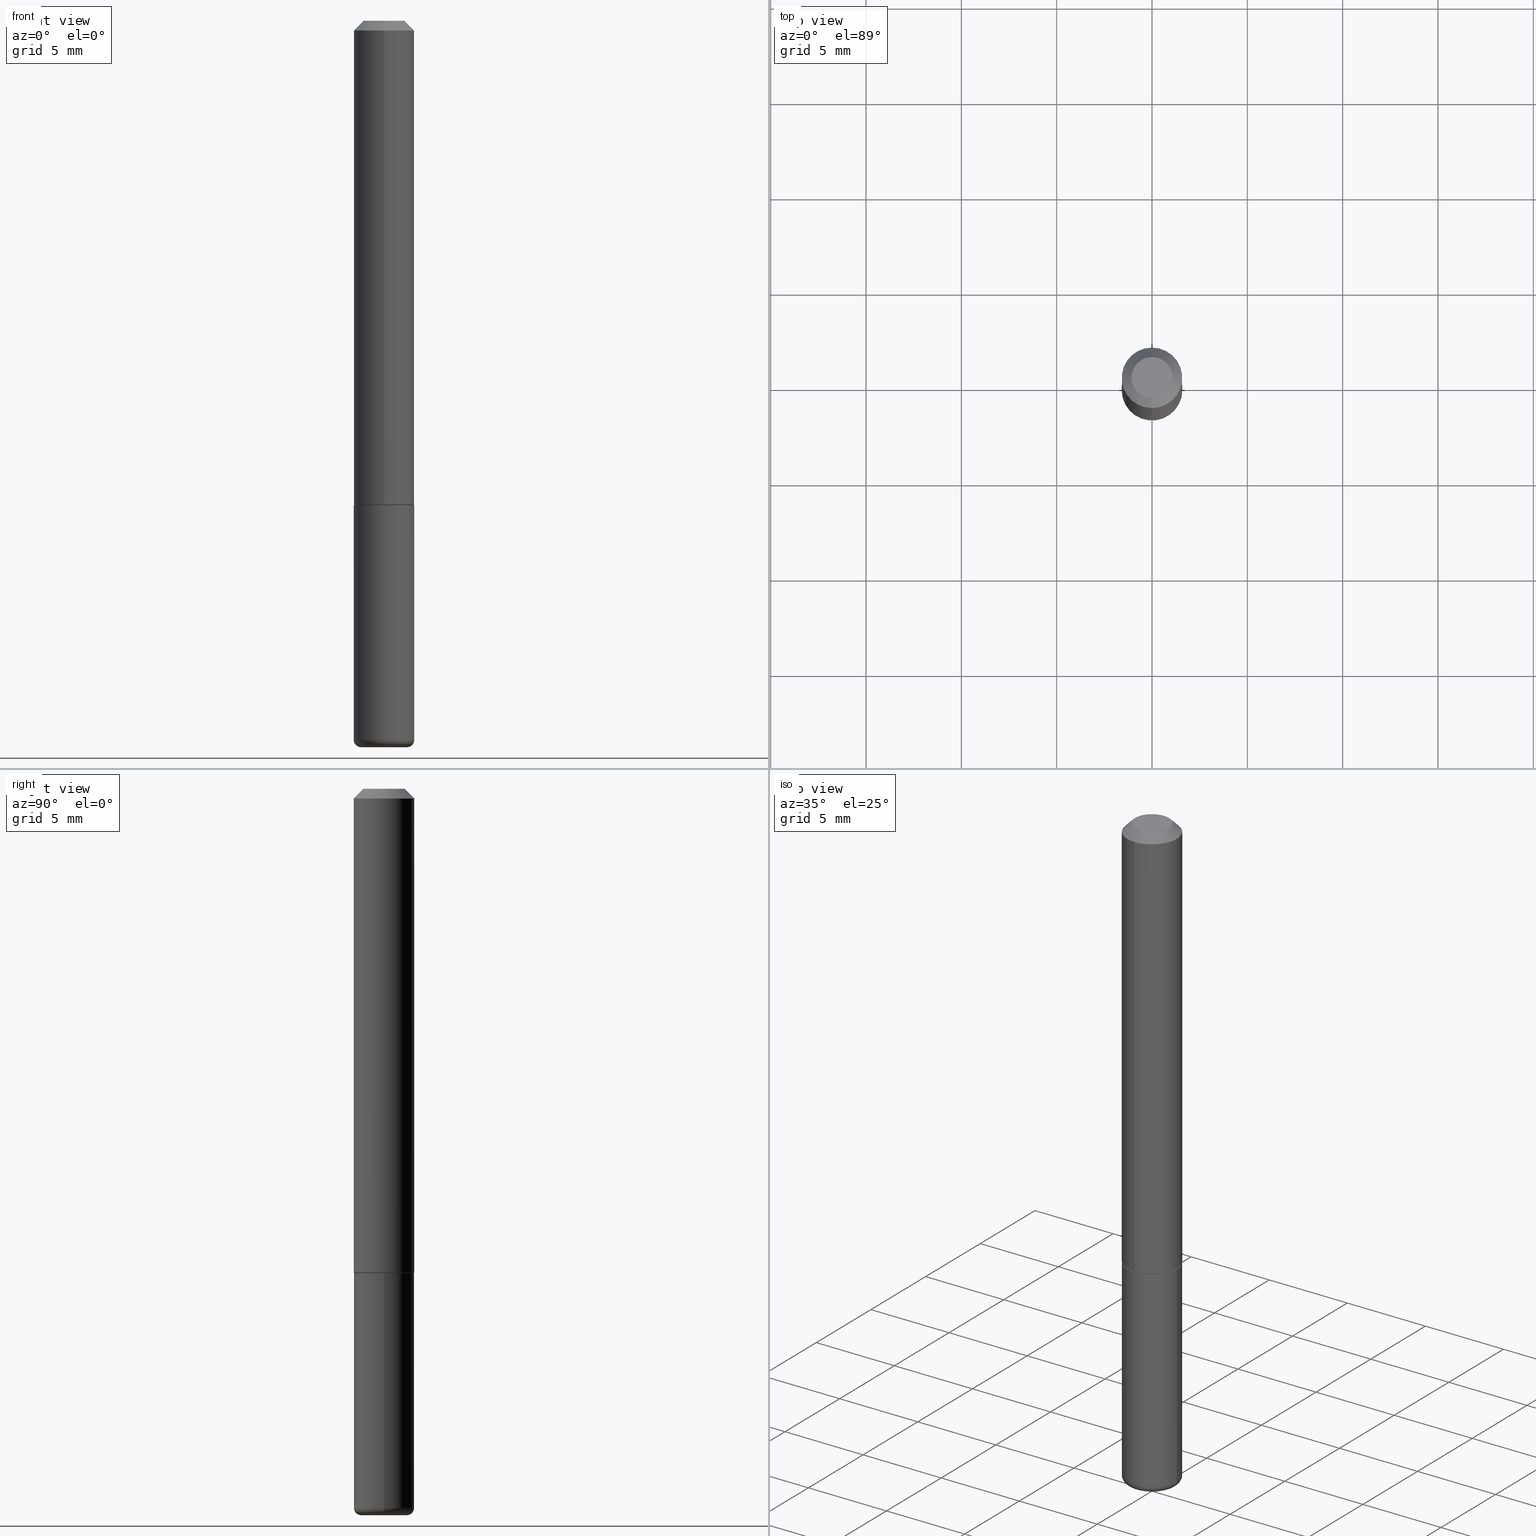
[diagram: canonical four-view strip — front | top / right | iso, engineering-drawing reading convention]
A machine part, canonical four-view strip (front | top / right | iso — engineering-drawing reading convention). The complete STEP part file that produces these views, byte-faithful:
ISO-10303-21;
HEADER;
FILE_DESCRIPTION (( 'STEP AP203' ),
    '1' );
FILE_NAME ('38201.STEP',
    '2024-03-02T18:07:33',
    ( '' ),
    ( '' ),
    'SwSTEP 2.0',
    'SolidWorks 2023',
    '' );
FILE_SCHEMA (( 'CONFIG_CONTROL_DESIGN' ));
ENDSEC;

DATA;
#1 = CARTESIAN_POINT ( 'NONE',  ( 2.420431046656757310E-29, -3.520343303691815911E-15, -0.9989999999999998881 ) ) ;
#2 = CARTESIAN_POINT ( 'NONE',  ( 3.666055405785281740E-16, 0.04249999999999975325, 4.369510515368569678E-17 ) ) ;
#3 = CIRCLE ( 'NONE', #72, 0.06250000000000001388 ) ;
#4 = PERSON_AND_ORGANIZATION_ROLE ( 'design_owner' ) ;
#5 = ORGANIZATION ( 'UNSPECIFIED', 'UNSPECIFIED', '' ) ;
#6 = ADVANCED_FACE ( 'NONE', ( #202 ), #266, .T. ) ;
#7 = MECHANICAL_CONTEXT ( 'NONE', #204, 'mechanical' ) ;
#8 = DIRECTION ( 'NONE',  ( -1.000000000000000000, 7.105427357601001859E-15, 0.000000000000000000 ) ) ;
#9 = PERSON_AND_ORGANIZATION ( #303, #5 ) ;
#10 = ORIENTED_EDGE ( 'NONE', *, *, #349, .T. ) ;
#11 = CIRCLE ( 'NONE', #196, 0.01499999999999997689 ) ;
#12 =( GEOMETRIC_REPRESENTATION_CONTEXT ( 3 ) GLOBAL_UNCERTAINTY_ASSIGNED_CONTEXT ( ( #391 ) ) GLOBAL_UNIT_ASSIGNED_CONTEXT ( ( #286, #411, #93 ) ) REPRESENTATION_CONTEXT ( 'NONE', 'WORKASPACE' ) );
#13 = CARTESIAN_POINT ( 'NONE',  ( -4.294522046776814963E-16, -0.06150000000000357264, -0.9999999999999994449 ) ) ;
#14 = EDGE_CURVE ( 'NONE', #310, #359, #11, .T. ) ;
#15 = CARTESIAN_POINT ( 'NONE',  ( 2.422853900557314300E-29, -3.523867170862677700E-15, -0.9999999999999996669 ) ) ;
#16 = CARTESIAN_POINT ( 'NONE',  ( 2.420431046656757310E-29, -3.520343303691815911E-15, -0.9989999999999998881 ) ) ;
#17 = DIRECTION ( 'NONE',  ( -6.982962677686266711E-15, -1.000000000000000000, 3.491481338843145583E-15 ) ) ;
#18 = CC_DESIGN_PERSON_AND_ORGANIZATION_ASSIGNMENT ( #66, #387, ( #167 ) ) ;
#19 = DIRECTION ( 'NONE',  ( -2.422853900557315141E-29, 3.523867170862678489E-15, 1.000000000000000000 ) ) ;
#20 = ORIENTED_EDGE ( 'NONE', *, *, #281, .T. ) ;
#21 = DIRECTION ( 'NONE',  ( -2.445468806185136597E-29, 3.491481338843145583E-15, 1.000000000000000000 ) ) ;
#22 = EDGE_CURVE ( 'NONE', #347, #85, #137, .T. ) ;
#23 = AXIS2_PLACEMENT_3D ( 'NONE', #400, #21, #339 ) ;
#24 = ORIENTED_EDGE ( 'NONE', *, *, #22, .F. ) ;
#25 = AXIS2_PLACEMENT_3D ( 'NONE', #242, #203, #369 ) ;
#26 = CARTESIAN_POINT ( 'NONE',  ( 4.440892098500754352E-16, 0.06249999999999659994, -0.9990000000000002212 ) ) ;
#27 = ORIENTED_EDGE ( 'NONE', *, *, #35, .F. ) ;
#28 = CARTESIAN_POINT ( 'NONE',  ( 3.668203209277704335E-29, -5.237222008264717388E-15, -1.499999999999999778 ) ) ;
#29 = EDGE_LOOP ( 'NONE', ( #312, #157 ) ) ;
#30 = DIRECTION ( 'NONE',  ( -6.982962677686266711E-15, -1.000000000000000000, 3.523867170862678884E-15 ) ) ;
#31 = CIRCLE ( 'NONE', #170, 0.04249999999999975325 ) ;
#32 = LOCAL_TIME ( 13, 7, 33.00000000000000000, #356 ) ;
#33 = FACE_OUTER_BOUND ( 'NONE', #374, .T. ) ;
#34 = DIRECTION ( 'NONE',  ( -4.937700262165222518E-15, -0.7071067811866417196, 0.7071067811864533148 ) ) ;
#35 = EDGE_CURVE ( 'NONE', #317, #370, #31, .T. ) ;
#36 = PERSON_AND_ORGANIZATION_ROLE ( 'design_supplier' ) ;
#37 = CIRCLE ( 'NONE', #335, 0.06250000000000012490 ) ;
#38 = SHAPE_DEFINITION_REPRESENTATION ( #214, #381 ) ;
#39 = APPROVAL_DATE_TIME ( #194, #208 ) ;
#40 = ORIENTED_EDGE ( 'NONE', *, *, #183, .T. ) ;
#41 = PERSON_AND_ORGANIZATION ( #303, #5 ) ;
#42 = ORIENTED_EDGE ( 'NONE', *, *, #324, .T. ) ;
#43 = EDGE_CURVE ( 'NONE', #370, #260, #393, .T. ) ;
#44 = APPROVAL_DATE_TIME ( #392, #55 ) ;
#45 = CARTESIAN_POINT ( 'NONE',  ( 4.440892098500628134E-16, 0.06250000000000002776, -2.202416981789175288E-16 ) ) ;
#46 = SECURITY_CLASSIFICATION ( '', '', #136 ) ;
#47 = ORIENTED_EDGE ( 'NONE', *, *, #379, .F. ) ;
#48 = DIRECTION ( 'NONE',  ( -2.422853900557314861E-29, 3.523867170862678489E-15, 1.000000000000000000 ) ) ;
#49 = CARTESIAN_POINT ( 'NONE',  ( 4.845707801114646817E-31, -7.047734341725380940E-17, -0.02000000000000006981 ) ) ;
#50 = CLOSED_SHELL ( 'NONE', ( #171, #69, #373, #117, #306, #88 ) ) ;
#51 = EDGE_CURVE ( 'NONE', #352, #85, #37, .T. ) ;
#52 = CARTESIAN_POINT ( 'NONE',  ( 0.06250000000000001388, -3.927916506198536858E-15, -0.9999999999999996669 ) ) ;
#53 = CARTESIAN_POINT ( 'NONE',  ( 3.668203209277704335E-29, -5.237222008264717388E-15, -1.499999999999999778 ) ) ;
#54 = ORIENTED_EDGE ( 'NONE', *, *, #397, .T. ) ;
#55 = APPROVAL ( #168, 'UNSPECIFIED' ) ;
#56 = CARTESIAN_POINT ( 'NONE',  ( -3.601761448830040600E-16, -0.04249999999999975325, 3.432238146770115888E-16 ) ) ;
#57 = AXIS2_PLACEMENT_3D ( 'NONE', #15, #48, #146 ) ;
#58 = ORIENTED_EDGE ( 'NONE', *, *, #183, .F. ) ;
#59 = AXIS2_PLACEMENT_3D ( 'NONE', #28, #161, #377 ) ;
#60 = DIRECTION ( 'NONE',  ( 1.000000000000000000, -6.982962677686261189E-15, 0.000000000000000000 ) ) ;
#61 = DIRECTION ( 'NONE',  ( 2.438088387897960049E-29, -3.491481338843145188E-15, -1.000000000000000000 ) ) ;
#62 = VERTEX_POINT ( 'NONE', #108 ) ;
#63 = EDGE_LOOP ( 'NONE', ( #27, #10, #406, #125 ) ) ;
#64 = CC_DESIGN_PERSON_AND_ORGANIZATION_ASSIGNMENT ( #395, #36, ( #267 ) ) ;
#65 = CIRCLE ( 'NONE', #401, 0.04249999999999975325 ) ;
#66 = PERSON_AND_ORGANIZATION ( #303, #5 ) ;
#67 = DESIGN_CONTEXT ( 'detailed design', #330, 'design' ) ;
#68 = PERSON_AND_ORGANIZATION_ROLE ( 'classification_officer' ) ;
#69 = ADVANCED_FACE ( 'NONE', ( #329 ), #300, .T. ) ;
#70 = AXIS2_PLACEMENT_3D ( 'NONE', #49, #342, #81 ) ;
#71 = CALENDAR_DATE ( 2024, 2, 3 ) ;
#72 = AXIS2_PLACEMENT_3D ( 'NONE', #241, #305, #309 ) ;
#73 = DIRECTION ( 'NONE',  ( 6.982962677686265922E-15, 1.000000000000000000, -3.551402391763545142E-15 ) ) ;
#74 = DATE_AND_TIME ( #71, #345 ) ;
#75 = DIRECTION ( 'NONE',  ( -2.422853900557315141E-29, 3.523867170862678489E-15, 1.000000000000000000 ) ) ;
#76 = VECTOR ( 'NONE', #304, 39.37007874015748143 ) ;
#77 = ORIENTED_EDGE ( 'NONE', *, *, #349, .F. ) ;
#78 = AXIS2_PLACEMENT_3D ( 'NONE', #199, #263, #229 ) ;
#79 = AXIS2_PLACEMENT_3D ( 'NONE', #253, #61, #384 ) ;
#80 = DIRECTION ( 'NONE',  ( -2.445468806185136597E-29, 3.491481338843145583E-15, 1.000000000000000000 ) ) ;
#81 = DIRECTION ( 'NONE',  ( -6.982962677686265922E-15, -1.000000000000000000, 3.551402391763545142E-15 ) ) ;
#82 = FACE_OUTER_BOUND ( 'NONE', #155, .T. ) ;
#83 = CIRCLE ( 'NONE', #231, 0.06150000000000004768 ) ;
#84 = CC_DESIGN_APPROVAL ( #208, ( #267 ) ) ;
#85 = VERTEX_POINT ( 'NONE', #104 ) ;
#86 = FACE_OUTER_BOUND ( 'NONE', #376, .T. ) ;
#87 = ORIENTED_EDGE ( 'NONE', *, *, #324, .F. ) ;
#88 = ADVANCED_FACE ( 'NONE', ( #230 ), #269, .T. ) ;
#89 = DIMENSIONAL_EXPONENTS ( 1.000000000000000000, 0.000000000000000000, 0.000000000000000000, 0.000000000000000000, 0.000000000000000000, 0.000000000000000000, 0.000000000000000000 ) ;
#90 = CARTESIAN_POINT ( 'NONE',  ( -0.06250000000000001388, -3.894076353662544935E-15, -0.9999999999999996669 ) ) ;
#91 = DIRECTION ( 'NONE',  ( -2.422853900557315141E-29, 3.523867170862678489E-15, 1.000000000000000000 ) ) ;
#92 = CC_DESIGN_SECURITY_CLASSIFICATION ( #46, ( #267 ) ) ;
#93 =( NAMED_UNIT ( * ) SI_UNIT ( $, .STERADIAN. ) SOLID_ANGLE_UNIT ( ) );
#94 = EDGE_CURVE ( 'NONE', #347, #396, #83, .T. ) ;
#95 = ORIENTED_EDGE ( 'NONE', *, *, #102, .T. ) ;
#96 = CARTESIAN_POINT ( 'NONE',  ( 2.445468806185136036E-29, -3.491481338843144399E-15, -0.9999999999999996669 ) ) ;
#97 = EDGE_CURVE ( 'NONE', #352, #260, #334, .T. ) ;
#98 = VERTEX_POINT ( 'NONE', #52 ) ;
#99 = CARTESIAN_POINT ( 'NONE',  ( 4.405364961712868626E-16, 0.06149999999999652273, -1.000000000000000000 ) ) ;
#100 = ADVANCED_FACE ( 'NONE', ( #403 ), #338, .F. ) ;
#101 = CARTESIAN_POINT ( 'NONE',  ( 3.631521177184927577E-29, -5.184849788182070703E-15, -1.484999999999999876 ) ) ;
#102 = EDGE_CURVE ( 'NONE', #260, #62, #294, .T. ) ;
#103 = APPROVAL_ROLE ( '' ) ;
#104 = CARTESIAN_POINT ( 'NONE',  ( -4.364351673553682501E-16, -0.06250000000000363598, -0.9989999999999996660 ) ) ;
#105 = AXIS2_PLACEMENT_3D ( 'NONE', #308, #17, #367 ) ;
#106 = COORDINATED_UNIVERSAL_TIME_OFFSET ( 5, 0, .BEHIND. ) ;
#107 = AXIS2_PLACEMENT_3D ( 'NONE', #372, #80, #178 ) ;
#108 = CARTESIAN_POINT ( 'NONE',  ( -4.287811248607198352E-16, -0.06250000000000001388, -0.01999999999999984776 ) ) ;
#109 = PERSON_AND_ORGANIZATION ( #303, #5 ) ;
#110 = ORIENTED_EDGE ( 'NONE', *, *, #379, .T. ) ;
#111 = CARTESIAN_POINT ( 'NONE',  ( -0.04750000000000004219, -4.847341988696023209E-15, -1.484999999999999876 ) ) ;
#112 = EDGE_CURVE ( 'NONE', #153, #310, #321, .T. ) ;
#113 = CYLINDRICAL_SURFACE ( 'NONE', #25, 0.06250000000000002776 ) ;
#114 = FACE_OUTER_BOUND ( 'NONE', #319, .T. ) ;
#115 = DIRECTION ( 'NONE',  ( -2.445468806185136597E-29, 3.491481338843145583E-15, 1.000000000000000000 ) ) ;
#116 = CYLINDRICAL_SURFACE ( 'NONE', #107, 0.06250000000000001388 ) ;
#117 = ADVANCED_FACE ( 'NONE', ( #82 ), #176, .T. ) ;
#118 = ORIENTED_EDGE ( 'NONE', *, *, #35, .T. ) ;
#119 = CARTESIAN_POINT ( 'NONE',  ( 2.967759138016645800E-16, 0.04249999999999975325, -5.303462480398862614E-17 ) ) ;
#120 = ORIENTED_EDGE ( 'NONE', *, *, #94, .T. ) ;
#121 = LINE ( 'NONE', #409, #301 ) ;
#122 = ORIENTED_EDGE ( 'NONE', *, *, #97, .T. ) ;
#123 = EDGE_CURVE ( 'NONE', #272, #359, #182, .T. ) ;
#124 = LINE ( 'NONE', #348, #314 ) ;
#125 = ORIENTED_EDGE ( 'NONE', *, *, #43, .F. ) ;
#126 = AXIS2_PLACEMENT_3D ( 'NONE', #119, #248, #375 ) ;
#127 = EDGE_CURVE ( 'NONE', #153, #272, #148, .T. ) ;
#128 = CARTESIAN_POINT ( 'NONE',  ( 0.000000000000000000, 0.000000000000000000, 0.000000000000000000 ) ) ;
#129 = DIRECTION ( 'NONE',  ( -6.982962677686265133E-15, -1.000000000000000000, 4.370956789862812472E-15 ) ) ;
#130 = CARTESIAN_POINT ( 'NONE',  ( 4.364351673553917187E-16, 0.06249999999999988204, -0.02000000000000029185 ) ) ;
#131 = DIRECTION ( 'NONE',  ( 1.000000000000000000, -6.982962677686261189E-15, 4.883557194083111219E-29 ) ) ;
#132 = DIRECTION ( 'NONE',  ( -2.445468806185136877E-29, 3.491481338843145188E-15, 1.000000000000000000 ) ) ;
#133 = AXIS2_PLACEMENT_3D ( 'NONE', #279, #408, #206 ) ;
#134 = APPROVAL_PERSON_ORGANIZATION ( #109, #208, #233 ) ;
#135 = APPROVAL_ROLE ( '' ) ;
#136 = SECURITY_CLASSIFICATION_LEVEL ( 'unclassified' ) ;
#137 = LINE ( 'NONE', #13, #394 ) ;
#138 = AXIS2_PLACEMENT_3D ( 'NONE', #53, #179, #273 ) ;
#139 = PERSON_AND_ORGANIZATION_ROLE ( 'creator' ) ;
#140 = AXIS2_PLACEMENT_3D ( 'NONE', #223, #353, #60 ) ;
#141 = EDGE_CURVE ( 'NONE', #62, #260, #365, .T. ) ;
#142 = EDGE_LOOP ( 'NONE', ( #120, #197, #244, #24 ) ) ;
#143 = PERSON_AND_ORGANIZATION ( #303, #5 ) ;
#144 = ORIENTED_EDGE ( 'NONE', *, *, #388, .T. ) ;
#145 = ADVANCED_FACE ( 'NONE', ( #205 ), #113, .T. ) ;
#146 = DIRECTION ( 'NONE',  ( -6.982962677686265922E-15, -1.000000000000000000, 3.523867170862678489E-15 ) ) ;
#147 = EDGE_CURVE ( 'NONE', #85, #62, #245, .T. ) ;
#148 = CIRCLE ( 'NONE', #105, 0.01499999999999997689 ) ;
#149 = CARTESIAN_POINT ( 'NONE',  ( 4.369837824924861120E-16, 0.06149999999999652273, -1.000000000000000000 ) ) ;
#150 = DIRECTION ( 'NONE',  ( -2.422853900557315141E-29, 3.523867170862678489E-15, 1.000000000000000000 ) ) ;
#151 = DIRECTION ( 'NONE',  ( 1.000000000000000000, -6.982962677686267499E-15, 4.876176775795935793E-29 ) ) ;
#152 = CARTESIAN_POINT ( 'NONE',  ( 4.845707801114646817E-31, -7.047734341725380940E-17, -0.02000000000000006981 ) ) ;
#153 = VERTEX_POINT ( 'NONE', #404 ) ;
#154 =( LENGTH_UNIT ( ) NAMED_UNIT ( * ) SI_UNIT ( $, .METRE. ) );
#155 = EDGE_LOOP ( 'NONE', ( #47, #54, #20, #287 ) ) ;
#156 = FACE_OUTER_BOUND ( 'NONE', #142, .T. ) ;
#157 = ORIENTED_EDGE ( 'NONE', *, *, #240, .F. ) ;
#158 = DIRECTION ( 'NONE',  ( -2.445468806185136877E-29, 3.491481338843145188E-15, 1.000000000000000000 ) ) ;
#159 = ORIENTED_EDGE ( 'NONE', *, *, #123, .F. ) ;
#160 = AXIS2_PLACEMENT_3D ( 'NONE', #128, #91, #30 ) ;
#161 = DIRECTION ( 'NONE',  ( -2.445468806185136597E-29, 3.491481338843145583E-15, 1.000000000000000000 ) ) ;
#162 = ORIENTED_EDGE ( 'NONE', *, *, #14, .F. ) ;
#163 = ADVANCED_FACE ( 'NONE', ( #239 ), #313, .T. ) ;
#164 = AXIS2_PLACEMENT_3D ( 'NONE', #416, #390, #73 ) ;
#165 = APPROVAL_PERSON_ORGANIZATION ( #326, #174, #103 ) ;
#166 = ORIENTED_EDGE ( 'NONE', *, *, #22, .T. ) ;
#167 = PRODUCT_DEFINITION ( 'UNKNOWN', '', #267, #67 ) ;
#168 = APPROVAL_STATUS ( 'not_yet_approved' ) ;
#169 = DIRECTION ( 'NONE',  ( 7.105427357601001859E-15, 1.000000000000000000, -3.491481338843145583E-15 ) ) ;
#170 = AXIS2_PLACEMENT_3D ( 'NONE', #236, #200, #172 ) ;
#171 = ADVANCED_FACE ( 'NONE', ( #340 ), #116, .T. ) ;
#172 = DIRECTION ( 'NONE',  ( -6.982962677686265922E-15, -1.000000000000000000, 3.523867170862678095E-15 ) ) ;
#173 = CARTESIAN_POINT ( 'NONE',  ( 2.422853900557314300E-29, -3.523867170862677700E-15, -0.9999999999999996669 ) ) ;
#174 = APPROVAL ( #389, 'UNSPECIFIED' ) ;
#175 = CARTESIAN_POINT ( 'NONE',  ( -4.364351673553918666E-16, -0.06250000000000002776, 2.202416981789175288E-16 ) ) ;
#176 = CYLINDRICAL_SURFACE ( 'NONE', #191, 0.06250000000000001388 ) ;
#177 = TOROIDAL_SURFACE ( 'NONE', #207, 0.04750000000000004219, 0.01499999999999997689 ) ;
#178 = DIRECTION ( 'NONE',  ( 1.000000000000000000, -6.982962677686267499E-15, 4.876176775795935793E-29 ) ) ;
#179 = DIRECTION ( 'NONE',  ( -2.445468806185136597E-29, 3.491481338843145583E-15, 1.000000000000000000 ) ) ;
#180 = ORIENTED_EDGE ( 'NONE', *, *, #147, .F. ) ;
#181 = DIRECTION ( 'NONE',  ( -2.422853900557315141E-29, 3.523867170862678489E-15, 1.000000000000000000 ) ) ;
#182 = CIRCLE ( 'NONE', #23, 0.06250000000000001388 ) ;
#183 = EDGE_CURVE ( 'NONE', #98, #218, #3, .T. ) ;
#184 = CONICAL_SURFACE ( 'NONE', #378, 0.06249999999999995143, 0.7853981633974467247 ) ;
#185 = ORIENTED_EDGE ( 'NONE', *, *, #43, .T. ) ;
#186 = DIRECTION ( 'NONE',  ( -6.982962677686265922E-15, -1.000000000000000000, 4.442029257990668187E-15 ) ) ;
#187 = EDGE_LOOP ( 'NONE', ( #323, #209, #166, #189 ) ) ;
#188 = CARTESIAN_POINT ( 'NONE',  ( 2.422853900557314300E-29, -3.523867170862677700E-15, -0.9999999999999996669 ) ) ;
#189 = ORIENTED_EDGE ( 'NONE', *, *, #51, .F. ) ;
#190 = DIRECTION ( 'NONE',  ( 1.000000000000000000, -6.982962677686261189E-15, 4.883557194083111219E-29 ) ) ;
#191 = AXIS2_PLACEMENT_3D ( 'NONE', #311, #115, #151 ) ;
#192 = ORIENTED_EDGE ( 'NONE', *, *, #397, .F. ) ;
#193 = LOCAL_TIME ( 13, 7, 33.00000000000000000, #398 ) ;
#194 = DATE_AND_TIME ( #357, #366 ) ;
#195 = DATE_TIME_ROLE ( 'classification_date' ) ;
#196 = AXIS2_PLACEMENT_3D ( 'NONE', #111, #169, #8 ) ;
#197 = ORIENTED_EDGE ( 'NONE', *, *, #227, .T. ) ;
#198 = EDGE_CURVE ( 'NONE', #85, #352, #354, .T. ) ;
#199 = CARTESIAN_POINT ( 'NONE',  ( 0.000000000000000000, 0.000000000000000000, 0.000000000000000000 ) ) ;
#200 = DIRECTION ( 'NONE',  ( -2.422853900557315141E-29, 3.523867170862678489E-15, 1.000000000000000000 ) ) ;
#201 = DIRECTION ( 'NONE',  ( -6.982962677686265922E-15, -1.000000000000000000, 4.442029257990668187E-15 ) ) ;
#202 = FACE_OUTER_BOUND ( 'NONE', #410, .T. ) ;
#203 = DIRECTION ( 'NONE',  ( -2.422853900557315141E-29, 3.523867170862678489E-15, 1.000000000000000000 ) ) ;
#204 = APPLICATION_CONTEXT ( 'configuration controlled 3d designs of mechanical parts and assemblies' ) ;
#205 = FACE_OUTER_BOUND ( 'NONE', #285, .T. ) ;
#206 = DIRECTION ( 'NONE',  ( -6.982962677686265922E-15, -1.000000000000000000, 4.442029257990668187E-15 ) ) ;
#207 = AXIS2_PLACEMENT_3D ( 'NONE', #101, #226, #190 ) ;
#208 = APPROVAL ( #298, 'UNSPECIFIED' ) ;
#209 = ORIENTED_EDGE ( 'NONE', *, *, #240, .T. ) ;
#210 = PLANE ( 'NONE',  #126 ) ;
#211 = EDGE_LOOP ( 'NONE', ( #162, #42, #343, #192 ) ) ;
#212 = LINE ( 'NONE', #149, #280 ) ;
#213 = ORIENTED_EDGE ( 'NONE', *, *, #112, .T. ) ;
#214 = PRODUCT_DEFINITION_SHAPE ( 'NONE', 'NONE',  #167 ) ;
#215 = ADVANCED_FACE ( 'NONE', ( #86 ), #210, .F. ) ;
#216 = DIRECTION ( 'NONE',  ( -2.445468806185136597E-29, 3.491481338843145583E-15, 1.000000000000000000 ) ) ;
#217 = CONICAL_SURFACE ( 'NONE', #232, 0.06150000000000004768, 0.7853981633975849475 ) ;
#218 = VERTEX_POINT ( 'NONE', #90 ) ;
#219 = CARTESIAN_POINT ( 'NONE',  ( 4.845707801114646817E-31, -7.047734341725380940E-17, -0.02000000000000006981 ) ) ;
#220 = ORIENTED_EDGE ( 'NONE', *, *, #198, .T. ) ;
#221 = DIRECTION ( 'NONE',  ( -4.851104656540955597E-15, -0.7071067811865487940, -0.7071067811865461294 ) ) ;
#222 = ORIENTED_EDGE ( 'NONE', *, *, #102, .F. ) ;
#223 = CARTESIAN_POINT ( 'NONE',  ( 3.631521177184928138E-29, -5.184849788182071492E-15, -1.485000000000000098 ) ) ;
#224 = AXIS2_PLACEMENT_3D ( 'NONE', #152, #150, #276 ) ;
#225 = PRODUCT_RELATED_PRODUCT_CATEGORY ( 'detail', '', ( #284 ) ) ;
#226 = DIRECTION ( 'NONE',  ( -2.445468806185136597E-29, 3.491481338843145583E-15, 1.000000000000000000 ) ) ;
#227 = EDGE_CURVE ( 'NONE', #396, #352, #212, .T. ) ;
#228 = COORDINATED_UNIVERSAL_TIME_OFFSET ( 5, 0, .BEHIND. ) ;
#229 = DIRECTION ( 'NONE',  ( 1.000000000000000000, 0.000000000000000000, 0.000000000000000000 ) ) ;
#230 = FACE_OUTER_BOUND ( 'NONE', #350, .T. ) ;
#231 = AXIS2_PLACEMENT_3D ( 'NONE', #363, #75, #201 ) ;
#232 = AXIS2_PLACEMENT_3D ( 'NONE', #188, #318, #186 ) ;
#233 = APPROVAL_ROLE ( '' ) ;
#234 = CARTESIAN_POINT ( 'NONE',  ( 3.668203209277704335E-29, -5.237222008264717388E-15, -1.499999999999999778 ) ) ;
#235 = DATE_AND_TIME ( #268, #371 ) ;
#236 = CARTESIAN_POINT ( 'NONE',  ( -4.687240070556140497E-45, 6.817254396885214509E-31, 1.934594599153486335E-16 ) ) ;
#237 = DIRECTION ( 'NONE',  ( -2.445468806185136597E-29, 3.491481338843145583E-15, 1.000000000000000000 ) ) ;
#238 = CIRCLE ( 'NONE', #261, 0.06150000000000004768 ) ;
#239 = FACE_OUTER_BOUND ( 'NONE', #187, .T. ) ;
#240 = EDGE_CURVE ( 'NONE', #396, #347, #238, .T. ) ;
#241 = CARTESIAN_POINT ( 'NONE',  ( 2.445468806185136036E-29, -3.491481338843144399E-15, -0.9999999999999996669 ) ) ;
#242 = CARTESIAN_POINT ( 'NONE',  ( 0.000000000000000000, 0.000000000000000000, 0.000000000000000000 ) ) ;
#243 = CC_DESIGN_PERSON_AND_ORGANIZATION_ASSIGNMENT ( #293, #4, ( #284 ) ) ;
#244 = ORIENTED_EDGE ( 'NONE', *, *, #198, .F. ) ;
#245 = LINE ( 'NONE', #175, #76 ) ;
#246 = CC_DESIGN_APPROVAL ( #174, ( #46 ) ) ;
#247 = ADVANCED_FACE ( 'NONE', ( #114 ), #368, .T. ) ;
#248 = DIRECTION ( 'NONE',  ( 2.422853900557314861E-29, -3.523867170862678489E-15, -1.000000000000000000 ) ) ;
#249 = ORIENTED_EDGE ( 'NONE', *, *, #112, .F. ) ;
#250 = MANIFOLD_SOLID_BREP ( 'Body-Move/Copy2[2]', #413 ) ;
#251 = LINE ( 'NONE', #415, #289 ) ;
#252 = ORIENTED_EDGE ( 'NONE', *, *, #262, .T. ) ;
#253 = CARTESIAN_POINT ( 'NONE',  ( 2.445468806185136036E-29, -3.491481338843144399E-15, -0.9999999999999996669 ) ) ;
#254 = VECTOR ( 'NONE', #302, 39.37007874015748143 ) ;
#255 = CIRCLE ( 'NONE', #360, 0.06250000000000001388 ) ;
#256 = ORIENTED_EDGE ( 'NONE', *, *, #127, .F. ) ;
#257 = DIRECTION ( 'NONE',  ( 6.982962677686265922E-15, 1.000000000000000000, -3.551402391763545142E-15 ) ) ;
#258 = CARTESIAN_POINT ( 'NONE',  ( 3.631521177184927577E-29, -5.184849788182070703E-15, -1.484999999999999876 ) ) ;
#259 = PLANE ( 'NONE',  #79 ) ;
#260 = VERTEX_POINT ( 'NONE', #130 ) ;
#261 = AXIS2_PLACEMENT_3D ( 'NONE', #173, #275, #402 ) ;
#262 = EDGE_CURVE ( 'NONE', #370, #317, #65, .T. ) ;
#263 = DIRECTION ( 'NONE',  ( 0.000000000000000000, 0.000000000000000000, 1.000000000000000000 ) ) ;
#264 = APPLICATION_PROTOCOL_DEFINITION ( 'international standard', 'config_control_design', 1994, #330 ) ;
#265 = EDGE_LOOP ( 'NONE', ( #213, #332, #159, #256 ) ) ;
#266 = CONICAL_SURFACE ( 'NONE', #164, 0.06249999999999995143, 0.7853981633974467247 ) ;
#267 = PRODUCT_DEFINITION_FORMATION_WITH_SPECIFIED_SOURCE ( 'ANY', '', #284, .NOT_KNOWN. ) ;
#268 = CALENDAR_DATE ( 2024, 2, 3 ) ;
#269 = PLANE ( 'NONE',  #274 ) ;
#270 = CC_DESIGN_DATE_AND_TIME_ASSIGNMENT ( #235, #195, ( #46 ) ) ;
#271 = COORDINATED_UNIVERSAL_TIME_OFFSET ( 5, 0, .BEHIND. ) ;
#272 = VERTEX_POINT ( 'NONE', #385 ) ;
#273 = DIRECTION ( 'NONE',  ( 1.000000000000000000, -6.982962677686276177E-15, 0.000000000000000000 ) ) ;
#274 = AXIS2_PLACEMENT_3D ( 'NONE', #234, #361, #364 ) ;
#275 = DIRECTION ( 'NONE',  ( -2.422853900557315141E-29, 3.523867170862678489E-15, 1.000000000000000000 ) ) ;
#276 = DIRECTION ( 'NONE',  ( -6.982962677686265922E-15, -1.000000000000000000, 3.551402391763545142E-15 ) ) ;
#277 = DIRECTION ( 'NONE',  ( -6.982962677686265133E-15, -1.000000000000000000, 4.370956789862812472E-15 ) ) ;
#278 = EDGE_LOOP ( 'NONE', ( #383, #110, #58, #380 ) ) ;
#279 = CARTESIAN_POINT ( 'NONE',  ( 2.422853900557314300E-29, -3.523867170862677700E-15, -0.9999999999999996669 ) ) ;
#280 = VECTOR ( 'NONE', #344, 39.37007874015748143 ) ;
#281 = EDGE_CURVE ( 'NONE', #272, #98, #124, .T. ) ;
#282 = ORIENTED_EDGE ( 'NONE', *, *, #262, .F. ) ;
#283 = FACE_OUTER_BOUND ( 'NONE', #63, .T. ) ;
#284 = PRODUCT ( '38201', '38201', '', ( #7 ) ) ;
#285 = EDGE_LOOP ( 'NONE', ( #412, #290, #399, #222 ) ) ;
#286 =( CONVERSION_BASED_UNIT ( 'INCH', #316 ) LENGTH_UNIT ( ) NAMED_UNIT ( #89 ) );
#287 = ORIENTED_EDGE ( 'NONE', *, *, #388, .F. ) ;
#288 = FACE_OUTER_BOUND ( 'NONE', #211, .T. ) ;
#289 = VECTOR ( 'NONE', #132, 39.37007874015748143 ) ;
#290 = ORIENTED_EDGE ( 'NONE', *, *, #51, .T. ) ;
#291 = CARTESIAN_POINT ( 'NONE',  ( -0.04750000000000004219, -4.820237393555338596E-15, -1.499999999999999778 ) ) ;
#292 = DIRECTION ( 'NONE',  ( 4.937700262164540154E-15, 0.7071067811865440200, -0.7071067811865511255 ) ) ;
#293 = PERSON_AND_ORGANIZATION ( #303, #5 ) ;
#294 = CIRCLE ( 'NONE', #70, 0.06249999999999995143 ) ;
#295 = CC_DESIGN_APPROVAL ( #55, ( #167 ) ) ;
#296 = APPROVAL_DATE_TIME ( #333, #174 ) ;
#297 = ORIENTED_EDGE ( 'NONE', *, *, #141, .F. ) ;
#298 = APPROVAL_STATUS ( 'not_yet_approved' ) ;
#299 = CARTESIAN_POINT ( 'NONE',  ( 4.364351673553917187E-16, 0.06249999999999988204, -0.02000000000000029185 ) ) ;
#300 = TOROIDAL_SURFACE ( 'NONE', #407, 0.04750000000000004219, 0.01499999999999997689 ) ;
#301 = VECTOR ( 'NONE', #221, 39.37007874015748854 ) ;
#302 = DIRECTION ( 'NONE',  ( -2.422853900557315141E-29, 3.523867170862678489E-15, 1.000000000000000000 ) ) ;
#303 = PERSON ( 'UNSPECIFIED', 'UNSPECIFIED', 'UNSPECIFIED', ('UNSPECIFIED'), ('UNSPECIFIED'), ('UNSPECIFIED') ) ;
#304 = DIRECTION ( 'NONE',  ( -2.422853900557315141E-29, 3.523867170862678489E-15, 1.000000000000000000 ) ) ;
#305 = DIRECTION ( 'NONE',  ( -2.445468806185136597E-29, 3.491481338843145583E-15, 1.000000000000000000 ) ) ;
#306 = ADVANCED_FACE ( 'NONE', ( #288 ), #177, .T. ) ;
#307 = APPROVAL_PERSON_ORGANIZATION ( #41, #55, #135 ) ;
#308 = CARTESIAN_POINT ( 'NONE',  ( 0.04750000000000004219, -5.516540515372169003E-15, -1.484999999999999876 ) ) ;
#309 = DIRECTION ( 'NONE',  ( 1.000000000000000000, -6.982962677686269077E-15, 0.000000000000000000 ) ) ;
#310 = VERTEX_POINT ( 'NONE', #291 ) ;
#311 = CARTESIAN_POINT ( 'NONE',  ( 0.000000000000000000, 0.000000000000000000, 0.000000000000000000 ) ) ;
#312 = ORIENTED_EDGE ( 'NONE', *, *, #94, .F. ) ;
#313 = CONICAL_SURFACE ( 'NONE', #133, 0.06150000000000004768, 0.7853981633975849475 ) ;
#314 = VECTOR ( 'NONE', #158, 39.37007874015748143 ) ;
#315 = DIRECTION ( 'NONE',  ( -6.982962677686265922E-15, -1.000000000000000000, 3.523867170862678095E-15 ) ) ;
#316 = LENGTH_MEASURE_WITH_UNIT ( LENGTH_MEASURE( 0.02539999999999999897 ), #154 );
#317 = VERTEX_POINT ( 'NONE', #56 ) ;
#318 = DIRECTION ( 'NONE',  ( -2.422853900557315141E-29, 3.523867170862678489E-15, 1.000000000000000000 ) ) ;
#319 = EDGE_LOOP ( 'NONE', ( #220, #122, #297, #180 ) ) ;
#320 = CARTESIAN_POINT ( 'NONE',  ( -4.294522046776814963E-16, -0.06150000000000357264, -0.9999999999999994449 ) ) ;
#321 = CIRCLE ( 'NONE', #138, 0.04750000000000004219 ) ;
#322 = AXIS2_PLACEMENT_3D ( 'NONE', #16, #19, #277 ) ;
#323 = ORIENTED_EDGE ( 'NONE', *, *, #227, .F. ) ;
#324 = EDGE_CURVE ( 'NONE', #310, #153, #336, .T. ) ;
#325 = CC_DESIGN_PERSON_AND_ORGANIZATION_ASSIGNMENT ( #9, #139, ( #267 ) ) ;
#326 = PERSON_AND_ORGANIZATION ( #303, #5 ) ;
#327 = VECTOR ( 'NONE', #292, 39.37007874015748143 ) ;
#328 = DATE_TIME_ROLE ( 'creation_date' ) ;
#329 = FACE_OUTER_BOUND ( 'NONE', #265, .T. ) ;
#330 = APPLICATION_CONTEXT ( 'configuration controlled 3d designs of mechanical parts and assemblies' ) ;
#331 = APPLICATION_PROTOCOL_DEFINITION ( 'international standard', 'config_control_design', 1994, #204 ) ;
#332 = ORIENTED_EDGE ( 'NONE', *, *, #14, .T. ) ;
#333 = DATE_AND_TIME ( #362, #193 ) ;
#334 = LINE ( 'NONE', #45, #254 ) ;
#335 = AXIS2_PLACEMENT_3D ( 'NONE', #1, #337, #129 ) ;
#336 = CIRCLE ( 'NONE', #59, 0.04750000000000004219 ) ;
#337 = DIRECTION ( 'NONE',  ( -2.422853900557315141E-29, 3.523867170862678489E-15, 1.000000000000000000 ) ) ;
#338 = PLANE ( 'NONE',  #57 ) ;
#339 = DIRECTION ( 'NONE',  ( 1.000000000000000000, -6.982962677686261189E-15, 0.000000000000000000 ) ) ;
#340 = FACE_OUTER_BOUND ( 'NONE', #278, .T. ) ;
#341 = CC_DESIGN_PERSON_AND_ORGANIZATION_ASSIGNMENT ( #143, #68, ( #46 ) ) ;
#342 = DIRECTION ( 'NONE',  ( -2.422853900557315141E-29, 3.523867170862678489E-15, 1.000000000000000000 ) ) ;
#343 = ORIENTED_EDGE ( 'NONE', *, *, #127, .T. ) ;
#344 = DIRECTION ( 'NONE',  ( 5.024295867788748699E-15, 0.7071067811866466046, 0.7071067811864484298 ) ) ;
#345 = LOCAL_TIME ( 13, 7, 33.00000000000000000, #106 ) ;
#346 = DIRECTION ( 'NONE',  ( 1.000000000000000000, -6.982962677686269077E-15, 0.000000000000000000 ) ) ;
#347 = VERTEX_POINT ( 'NONE', #320 ) ;
#348 = CARTESIAN_POINT ( 'NONE',  ( 0.06250000000000001388, -4.364351673553918173E-16, 3.047610484872460571E-30 ) ) ;
#349 = EDGE_CURVE ( 'NONE', #317, #62, #121, .T. ) ;
#350 = EDGE_LOOP ( 'NONE', ( #249, #87 ) ) ;
#351 = CARTESIAN_POINT ( 'NONE',  ( -4.687240070556140497E-45, 6.817254396885214509E-31, 1.934594599153486335E-16 ) ) ;
#352 = VERTEX_POINT ( 'NONE', #26 ) ;
#353 = DIRECTION ( 'NONE',  ( -2.445468806185136597E-29, 3.491481338843145583E-15, 1.000000000000000000 ) ) ;
#354 = CIRCLE ( 'NONE', #322, 0.06250000000000012490 ) ;
#355 = ADVANCED_FACE ( 'NONE', ( #283 ), #184, .T. ) ;
#356 = COORDINATED_UNIVERSAL_TIME_OFFSET ( 5, 0, .BEHIND. ) ;
#357 = CALENDAR_DATE ( 2024, 2, 3 ) ;
#358 = CALENDAR_DATE ( 2024, 2, 3 ) ;
#359 = VERTEX_POINT ( 'NONE', #382 ) ;
#360 = AXIS2_PLACEMENT_3D ( 'NONE', #96, #216, #346 ) ;
#361 = DIRECTION ( 'NONE',  ( 2.438088387897960049E-29, -3.491481338843145188E-15, -1.000000000000000000 ) ) ;
#362 = CALENDAR_DATE ( 2024, 2, 3 ) ;
#363 = CARTESIAN_POINT ( 'NONE',  ( 2.422853900557314300E-29, -3.523867170862677700E-15, -0.9999999999999996669 ) ) ;
#364 = DIRECTION ( 'NONE',  ( -1.000000000000000000, 6.982962677686265922E-15, -4.876176775795935793E-29 ) ) ;
#365 = CIRCLE ( 'NONE', #224, 0.06249999999999995143 ) ;
#366 = LOCAL_TIME ( 13, 7, 33.00000000000000000, #228 ) ;
#367 = DIRECTION ( 'NONE',  ( 1.000000000000000000, -6.982962677686279332E-15, 0.000000000000000000 ) ) ;
#368 = CYLINDRICAL_SURFACE ( 'NONE', #160, 0.06250000000000002776 ) ;
#369 = DIRECTION ( 'NONE',  ( -6.982962677686266711E-15, -1.000000000000000000, 3.523867170862678884E-15 ) ) ;
#370 = VERTEX_POINT ( 'NONE', #2 ) ;
#371 = LOCAL_TIME ( 13, 7, 33.00000000000000000, #271 ) ;
#372 = CARTESIAN_POINT ( 'NONE',  ( 0.000000000000000000, 0.000000000000000000, 0.000000000000000000 ) ) ;
#373 = ADVANCED_FACE ( 'NONE', ( #33 ), #259, .F. ) ;
#374 = EDGE_LOOP ( 'NONE', ( #40, #144 ) ) ;
#375 = DIRECTION ( 'NONE',  ( 6.982962677686265922E-15, 1.000000000000000000, -3.523867170862678489E-15 ) ) ;
#376 = EDGE_LOOP ( 'NONE', ( #252, #118 ) ) ;
#377 = DIRECTION ( 'NONE',  ( 1.000000000000000000, -6.982962677686276177E-15, 0.000000000000000000 ) ) ;
#378 = AXIS2_PLACEMENT_3D ( 'NONE', #219, #417, #257 ) ;
#379 = EDGE_CURVE ( 'NONE', #359, #218, #251, .T. ) ;
#380 = ORIENTED_EDGE ( 'NONE', *, *, #281, .F. ) ;
#381 = ADVANCED_BREP_SHAPE_REPRESENTATION ( '38201', ( #386, #250, #78 ), #12 ) ;
#382 = CARTESIAN_POINT ( 'NONE',  ( -0.06250000000000001388, -4.740760578332009665E-15, -1.485000000000000098 ) ) ;
#383 = ORIENTED_EDGE ( 'NONE', *, *, #123, .T. ) ;
#384 = DIRECTION ( 'NONE',  ( -1.000000000000000000, 6.982962677686265922E-15, -4.876176775795935793E-29 ) ) ;
#385 = CARTESIAN_POINT ( 'NONE',  ( 0.06250000000000001388, -5.621284955537463950E-15, -1.485000000000000098 ) ) ;
#386 = MANIFOLD_SOLID_BREP ( 'Body-Move/Copy2[1]', #50 ) ;
#387 = PERSON_AND_ORGANIZATION_ROLE ( 'creator' ) ;
#388 = EDGE_CURVE ( 'NONE', #218, #98, #255, .T. ) ;
#389 = APPROVAL_STATUS ( 'not_yet_approved' ) ;
#390 = DIRECTION ( 'NONE',  ( 2.422853900557315141E-29, -3.523867170862678489E-15, -1.000000000000000000 ) ) ;
#391 = UNCERTAINTY_MEASURE_WITH_UNIT (LENGTH_MEASURE( 1.000000000000000082E-05 ), #286, 'distance_accuracy_value', 'NONE');
#392 = DATE_AND_TIME ( #358, #32 ) ;
#393 = LINE ( 'NONE', #299, #327 ) ;
#394 = VECTOR ( 'NONE', #34, 39.37007874015748143 ) ;
#395 = PERSON_AND_ORGANIZATION ( #303, #5 ) ;
#396 = VERTEX_POINT ( 'NONE', #99 ) ;
#397 = EDGE_CURVE ( 'NONE', #359, #272, #414, .T. ) ;
#398 = COORDINATED_UNIVERSAL_TIME_OFFSET ( 5, 0, .BEHIND. ) ;
#399 = ORIENTED_EDGE ( 'NONE', *, *, #147, .T. ) ;
#400 = CARTESIAN_POINT ( 'NONE',  ( 3.631521177184928138E-29, -5.184849788182071492E-15, -1.485000000000000098 ) ) ;
#401 = AXIS2_PLACEMENT_3D ( 'NONE', #351, #181, #315 ) ;
#402 = DIRECTION ( 'NONE',  ( -6.982962677686265922E-15, -1.000000000000000000, 4.442029257990668187E-15 ) ) ;
#403 = FACE_OUTER_BOUND ( 'NONE', #29, .T. ) ;
#404 = CARTESIAN_POINT ( 'NONE',  ( 0.04750000000000004219, -5.568912735454815688E-15, -1.499999999999999778 ) ) ;
#405 = ADVANCED_FACE ( 'NONE', ( #156 ), #217, .T. ) ;
#406 = ORIENTED_EDGE ( 'NONE', *, *, #141, .T. ) ;
#407 = AXIS2_PLACEMENT_3D ( 'NONE', #258, #237, #131 ) ;
#408 = DIRECTION ( 'NONE',  ( -2.422853900557315141E-29, 3.523867170862678489E-15, 1.000000000000000000 ) ) ;
#409 = CARTESIAN_POINT ( 'NONE',  ( -4.287811248607198352E-16, -0.06250000000000001388, -0.01999999999999984776 ) ) ;
#410 = EDGE_LOOP ( 'NONE', ( #77, #282, #185, #95 ) ) ;
#411 =( NAMED_UNIT ( * ) PLANE_ANGLE_UNIT ( ) SI_UNIT ( $, .RADIAN. ) );
#412 = ORIENTED_EDGE ( 'NONE', *, *, #97, .F. ) ;
#413 = CLOSED_SHELL ( 'NONE', ( #405, #247, #355, #6, #145, #163, #100, #215 ) ) ;
#414 = CIRCLE ( 'NONE', #140, 0.06250000000000001388 ) ;
#415 = CARTESIAN_POINT ( 'NONE',  ( -0.06250000000000001388, 4.440892098500627148E-16, -3.074334431409317165E-30 ) ) ;
#416 = CARTESIAN_POINT ( 'NONE',  ( 4.845707801114646817E-31, -7.047734341725380940E-17, -0.02000000000000006981 ) ) ;
#417 = DIRECTION ( 'NONE',  ( 2.422853900557315141E-29, -3.523867170862678489E-15, -1.000000000000000000 ) ) ;
#418 = CC_DESIGN_DATE_AND_TIME_ASSIGNMENT ( #74, #328, ( #167 ) ) ;
ENDSEC;
END-ISO-10303-21;
